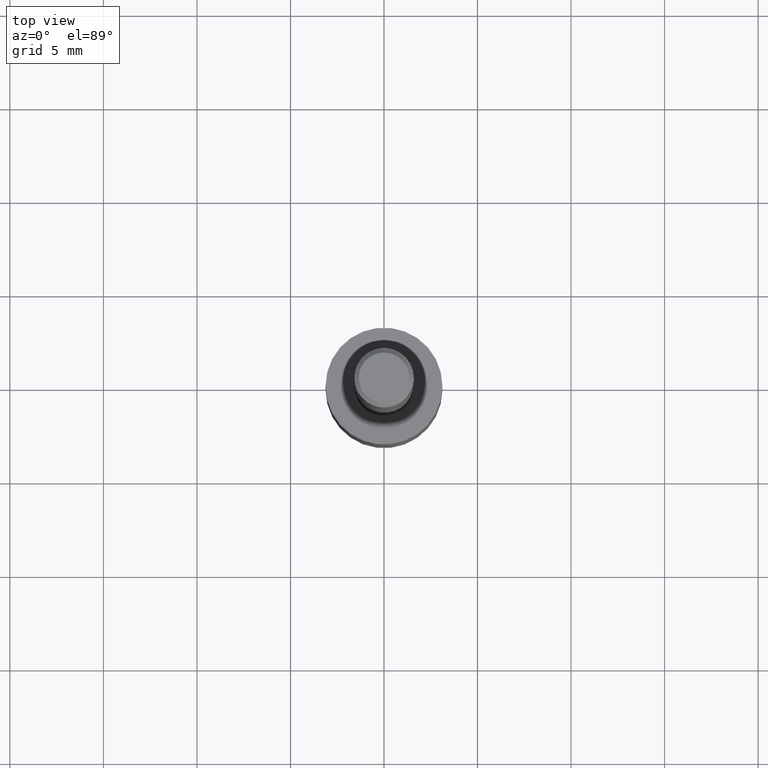
[diagram: clean part render]
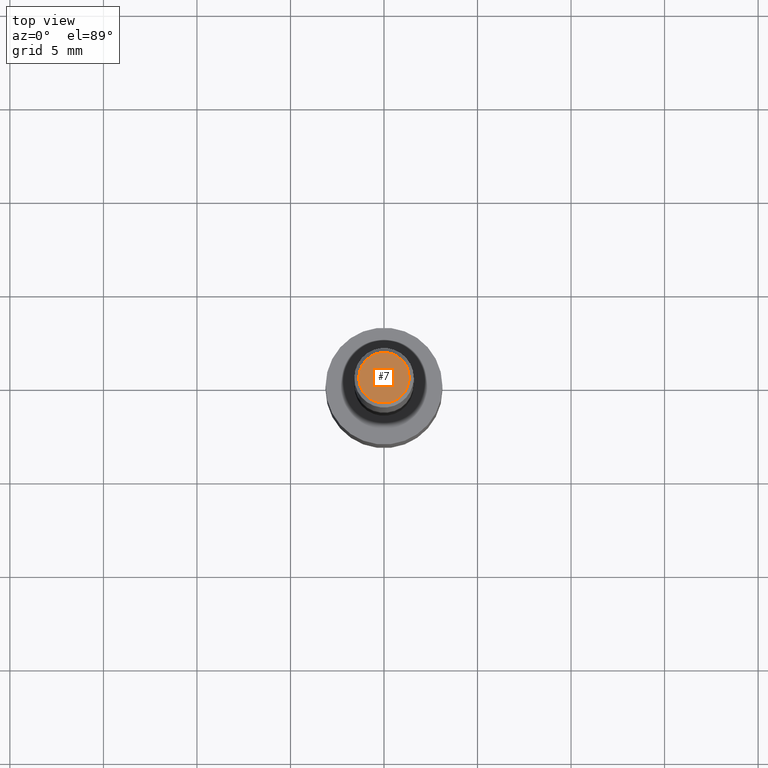
[diagram: same view with one face highlighted and labeled with its STEP entity id]
A machine part, top view. The second image highlights one B-rep face of the part: STEP entity #7.
In plain terms, the highlighted planar face has unit normal (0, -0, -1).
Its self-contained STEP definition (entity closure, byte-faithful):
#5 = DIRECTION ( 'NONE',  ( -2.445468806185136597E-29, 3.491481338843145583E-15, 1.000000000000000000 ) ) ;
#7 = ADVANCED_FACE ( 'NONE', ( #137 ), #115, .F. ) ;
#16 = EDGE_CURVE ( 'NONE', #287, #232, #182, .T. ) ;
#25 = CARTESIAN_POINT ( 'NONE',  ( -7.487088864773345706E-50, 1.068957861474247695E-35, 3.061616997868395197E-21 ) ) ;
#47 = EDGE_LOOP ( 'NONE', ( #250, #84 ) ) ;
#77 = DIRECTION ( 'NONE',  ( 1.000000000000000000, -6.982962677686266711E-15, 4.876176628004948512E-29 ) ) ;
#84 = ORIENTED_EDGE ( 'NONE', *, *, #240, .T. ) ;
#115 = PLANE ( 'NONE',  #330 ) ;
#137 = FACE_OUTER_BOUND ( 'NONE', #47, .T. ) ;
#182 = CIRCLE ( 'NONE', #237, 0.05312499999999999861 ) ;
#191 = CARTESIAN_POINT ( 'NONE',  ( -3.743544432386672853E-50, 5.344789307371238476E-36, 1.530808498934197599E-21 ) ) ;
#200 = DIRECTION ( 'NONE',  ( -2.445468806185136597E-29, 3.491481338843145583E-15, 1.000000000000000000 ) ) ;
#214 = DIRECTION ( 'NONE',  ( -1.000000000000000000, 6.982962677686265922E-15, -4.876176775795935793E-29 ) ) ;
#221 = AXIS2_PLACEMENT_3D ( 'NONE', #242, #5, #77 ) ;
#228 = DIRECTION ( 'NONE',  ( 1.000000000000000000, -6.982962677686266711E-15, 4.876176628004948512E-29 ) ) ;
#232 = VERTEX_POINT ( 'NONE', #245 ) ;
#237 = AXIS2_PLACEMENT_3D ( 'NONE', #25, #200, #228 ) ;
#240 = EDGE_CURVE ( 'NONE', #232, #287, #327, .T. ) ;
#242 = CARTESIAN_POINT ( 'NONE',  ( -7.487088864773345706E-50, 1.068957861474247695E-35, 3.061616997868395197E-21 ) ) ;
#245 = CARTESIAN_POINT ( 'NONE',  ( 0.05312499999999999861, -4.129888592719939842E-16, 3.061617000609493422E-21 ) ) ;
#250 = ORIENTED_EDGE ( 'NONE', *, *, #16, .T. ) ;
#282 = CARTESIAN_POINT ( 'NONE',  ( -0.05312499999999999861, 3.873362110279099094E-16, 3.061616995216862494E-21 ) ) ;
#287 = VERTEX_POINT ( 'NONE', #282 ) ;
#291 = DIRECTION ( 'NONE',  ( 2.438088387897960049E-29, -3.491481338843145188E-15, -1.000000000000000000 ) ) ;
#327 = CIRCLE ( 'NONE', #221, 0.05312499999999999861 ) ;
#330 = AXIS2_PLACEMENT_3D ( 'NONE', #191, #291, #214 ) ;